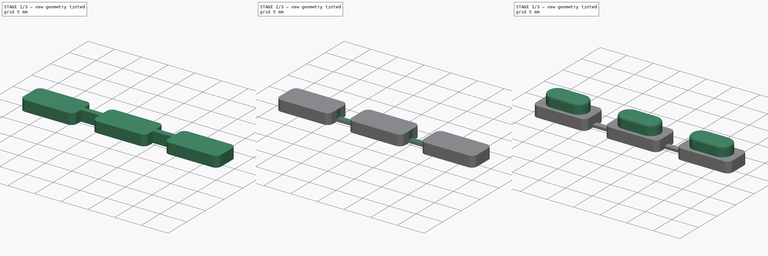
[diagram: build sequence overview — one tinted view per stage of 3, left to right]
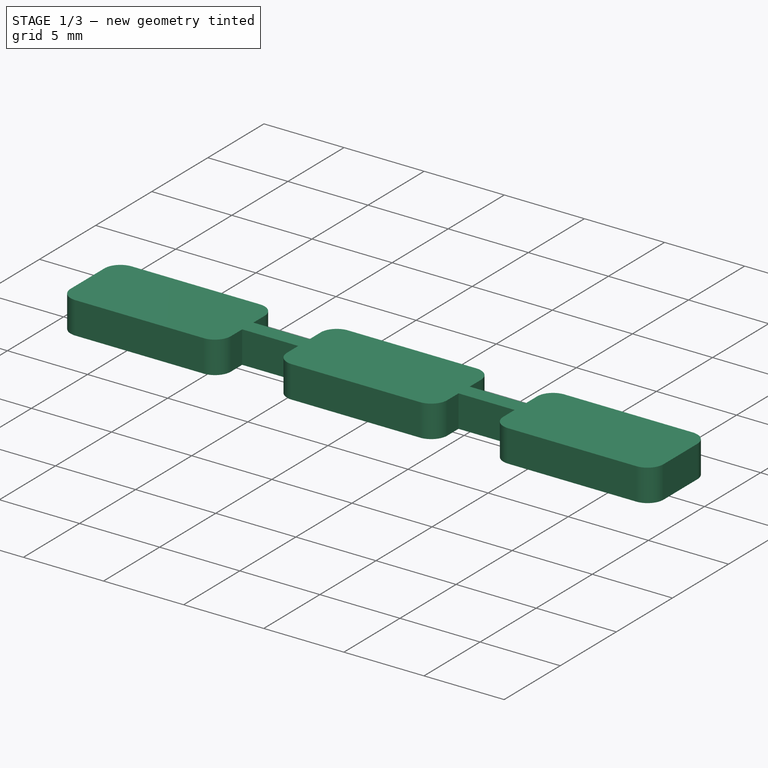
[diagram: stage 1 of 3 — iso view after this stage's code; geometry added in this stage tinted green]
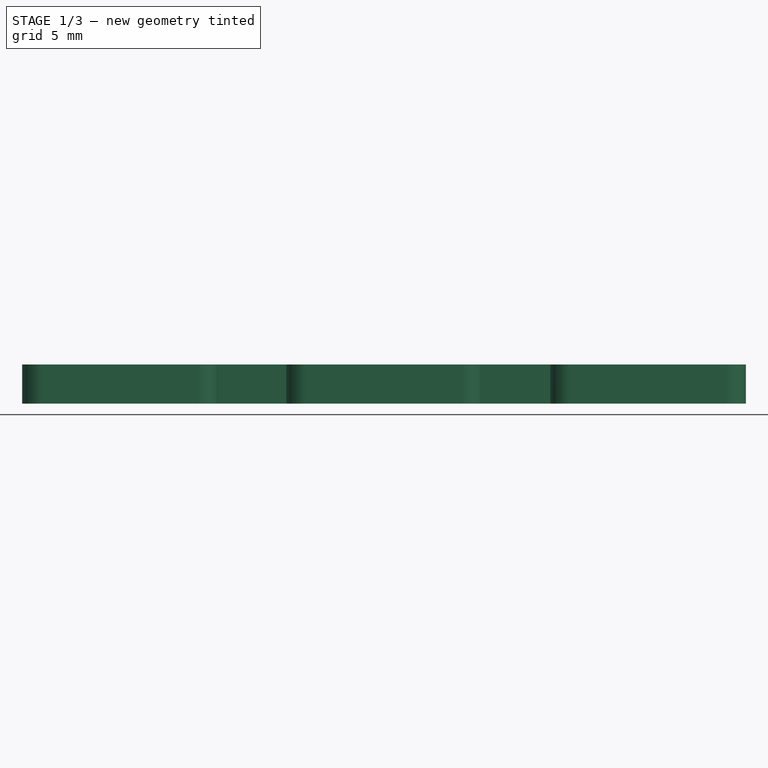
[diagram: stage 1 of 3 — front view after this stage's code; geometry added in this stage tinted green]
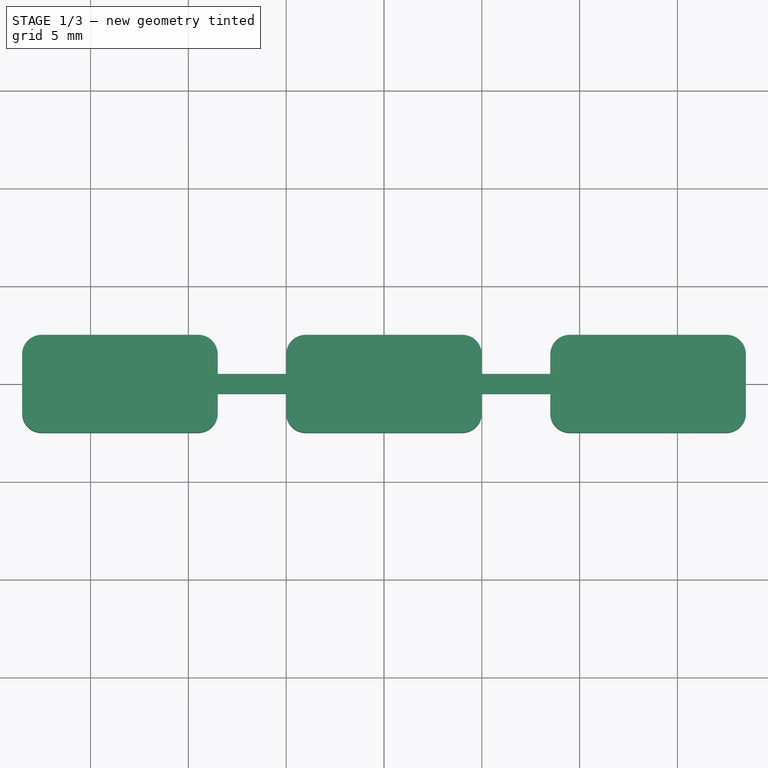
[diagram: stage 1 of 3 — top view after this stage's code; geometry added in this stage tinted green]
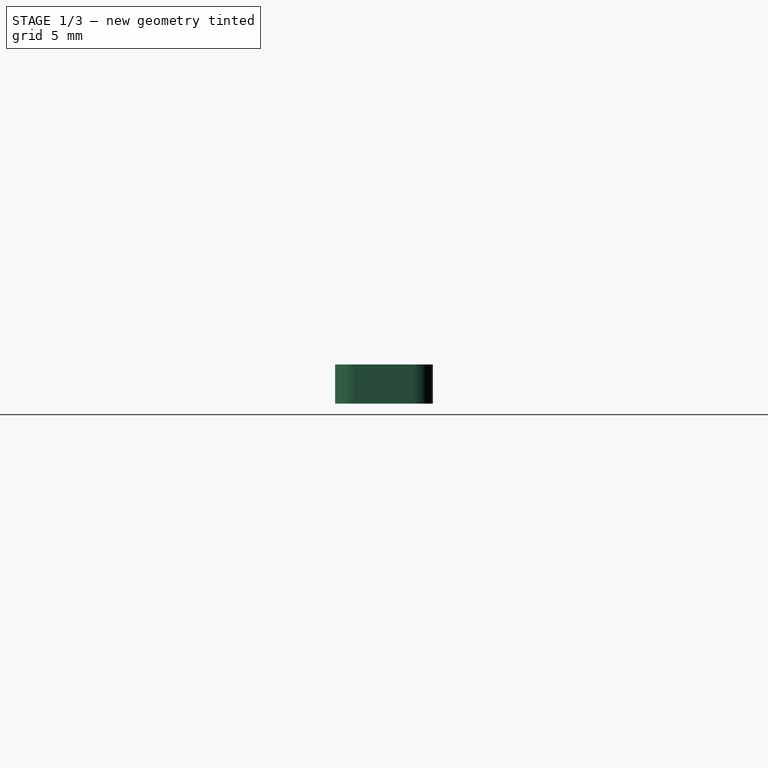
[diagram: stage 1 of 3 — right view after this stage's code; geometry added in this stage tinted green]
FCSTD DOCUMENT  (FreeCAD 0.16R6710 (Git))
Label: buttons
License: All rights reserved
LicenseURL: http://en.wikipedia.org/wiki/All_rights_reserved
objects: Sketcher::SketchObject×3, PartDesign::Pad×2, PartDesign::Fillet×2, PartDesign::Pocket×1
note: 11 computed .brp shape members not serialized (recipe doc carries the construction recipe); baked Part::Feature solids carry a one-line shape summary decoded from their .brp

FEATURE [Sketcher::SketchObject] Sketch
  sketch-geometry (25):
    g0: LineSegment StartX=-18.5 StartY=2.5 StartZ=0 EndX=-8.5 EndY=2.5 EndZ=0
    g1: LineSegment StartX=-8.5 StartY=-2.5 StartZ=0 EndX=-18.5 EndY=-2.5 EndZ=0
    g2: LineSegment StartX=-18.5 StartY=-2.5 StartZ=0 EndX=-18.5 EndY=2.5 EndZ=0
    g3: LineSegment StartX=-5 StartY=2.5 StartZ=0 EndX=5 EndY=2.5 EndZ=0
    g4: LineSegment StartX=5 StartY=-2.5 StartZ=0 EndX=-5 EndY=-2.5 EndZ=0
    g5: LineSegment StartX=8.5 StartY=2.5 StartZ=0 EndX=18.5 EndY=2.5 EndZ=0
    g6: LineSegment StartX=18.5 StartY=2.5 StartZ=0 EndX=18.5 EndY=-2.5 EndZ=0
    g7: LineSegment StartX=18.5 StartY=-2.5 StartZ=0 EndX=8.5 EndY=-2.5 EndZ=0
    g8: LineSegment [constr] StartX=-8.5 StartY=2.5 StartZ=0 EndX=-5 EndY=2.5 EndZ=0
    g9: LineSegment [constr] StartX=5 StartY=2.5 StartZ=0 EndX=8.5 EndY=2.5 EndZ=0
    g10: LineSegment [constr] StartX=-8.5 StartY=-2.5 StartZ=0 EndX=-5 EndY=-2.5 EndZ=0
    g11: LineSegment [constr] StartX=5 StartY=-2.5 StartZ=0 EndX=8.5 EndY=-2.5 EndZ=0
    g12: LineSegment StartX=-8.5 StartY=2.5 StartZ=0 EndX=-8.5 EndY=0.5 EndZ=0
    g13: LineSegment StartX=-8.5 StartY=0.5 StartZ=0 EndX=-5 EndY=0.5 EndZ=0
    g14: LineSegment StartX=-5 StartY=0.5 StartZ=0 EndX=-5 EndY=2.5 EndZ=0
    g15: LineSegment StartX=-8.5 StartY=-2.5 StartZ=0 EndX=-8.5 EndY=-0.5 EndZ=0
    g16: LineSegment StartX=-8.5 StartY=-0.5 StartZ=0 EndX=-5 EndY=-0.5 EndZ=0
    g17: LineSegment StartX=-5 StartY=-0.5 StartZ=0 EndX=-5 EndY=-2.5 EndZ=0
    g18: LineSegment StartX=5 StartY=-2.5 StartZ=0 EndX=5 EndY=-0.5 EndZ=0
    g19: LineSegment StartX=5 StartY=-0.5 StartZ=0 EndX=8.5 EndY=-0.5 EndZ=0
    g20: LineSegment StartX=8.5 StartY=-0.5 StartZ=0 EndX=8.5 EndY=-2.5 EndZ=0
    g21: LineSegment StartX=5 StartY=2.5 StartZ=0 EndX=5 EndY=0.5 EndZ=0
    g22: LineSegment StartX=5 StartY=0.5 StartZ=0 EndX=8.5 EndY=0.5 EndZ=0
    g23: LineSegment StartX=8.5 StartY=0.5 StartZ=0 EndX=8.5 EndY=2.5 EndZ=0
    g24: LineSegment [constr] StartX=-5 StartY=0.5 StartZ=0 EndX=5 EndY=0.5 EndZ=0
  constraints (69):
    c: Coincident(g1,g2)
    c: Coincident(g2,g0)
    c: Horizontal(g0)
    c: Horizontal(g1)
    c: Vertical(g2)
    c: DistanceX(g0,g0) = 10
    c: DistanceY(g2,g2) = 5
    c: Symmetric(g0,g1,g-1)
    c: Horizontal(g3)
    c: Horizontal(g4)
    c: Coincident(g5,g6)
    c: Coincident(g6,g7)
    c: Horizontal(g5)
    c: Horizontal(g7)
    c: Vertical(g6)
    c: Equal(g3,g5)
    c: Equal(g5,g0)
    c: Coincident(g8,g0)
    c: Coincident(g8,g3)
    c: Horizontal(g8)
    c: Coincident(g9,g3)
    c: Coincident(g9,g5)
    c: Horizontal(g9)
    c: Coincident(g10,g1)
    c: Coincident(g11,g7)
    c: Horizontal(g10)
    c: Coincident(g4,g10)
    c: Horizontal(g11)
    c: Equal(g9,g8)
    c: DistanceX(g8,g8) = 3.5
    c: Coincident(g0,g12)
    c: Coincident(g12,g13)
    c: Horizontal(g13)
    c: Coincident(g13,g14)
    c: Coincident(g14,g3)
    c: Vertical(g14)
    c: Coincident(g1,g15)
    c: Vertical(g15)
    c: Coincident(g15,g16)
    c: Horizontal(g16)
    c: Coincident(g16,g17)
    c: Coincident(g17,g4)
    c: Vertical(g17)
    c: Vertical(g18)
    c: Coincident(g18,g19)
    c: Horizontal(g19)
    c: Coincident(g19,g20)
    c: Coincident(g3,g21)
    c: Vertical(g21)
    c: Coincident(g21,g22)
    c: Horizontal(g22)
    c: Coincident(g22,g23)
    c: Coincident(g23,g5)
    c: Vertical(g23)
    c: Vertical(g20)
    c: Vertical(g12)
    c: Symmetric(g3,g4,g-1)
    c: Symmetric(g3,g4,g-1)
    c: Coincident(g18,g11)
    c: Coincident(g11,g4)
    c: Coincident(g20,g7)
    c: Symmetric(g7,g5,g-1)
    c: Symmetric(g21,g18,g-1)
    c: Symmetric(g16,g13,g-1)
    c: DistanceY(g16,g13) = 1
    c: Coincident(g24,g13)
    c: Coincident(g24,g21)
    c: Horizontal(g24)
    c: Symmetric(g3,g3,g-2)
FEATURE [PartDesign::Pad] Pad
  Length = 2
  Length2 = 100
  Sketch = -> Sketch
  Type = 0
FEATURE [PartDesign::Fillet] Fillet
  Base = -> Pad [Edge5,Edge17,Edge29,Edge2,Edge50,Edge38,Edge8,Edge1,Edge20,Edge47,Edge32,Edge35]
  Radius = 1
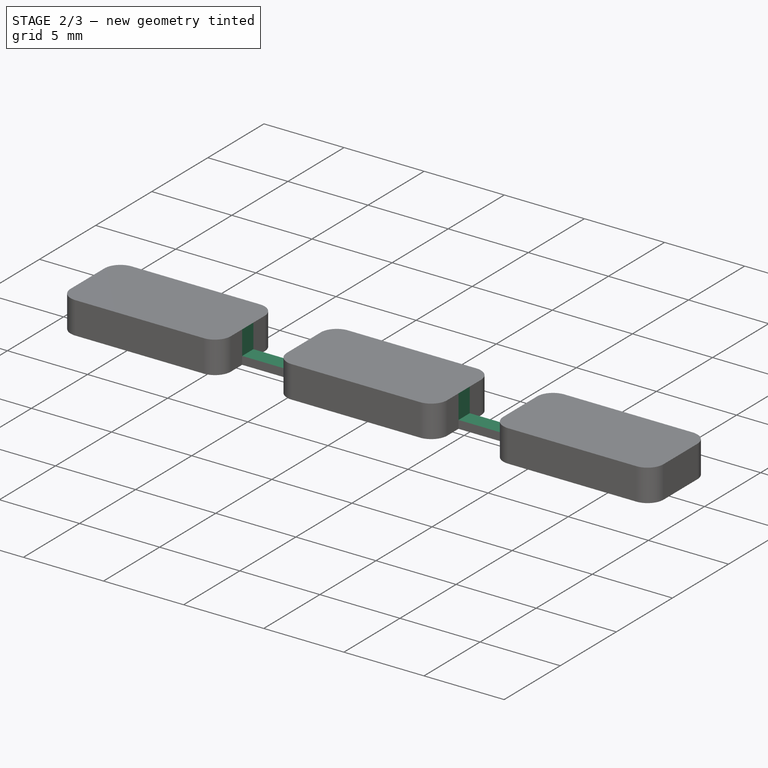
[diagram: stage 2 of 3 — iso view after this stage's code; geometry added in this stage tinted green]
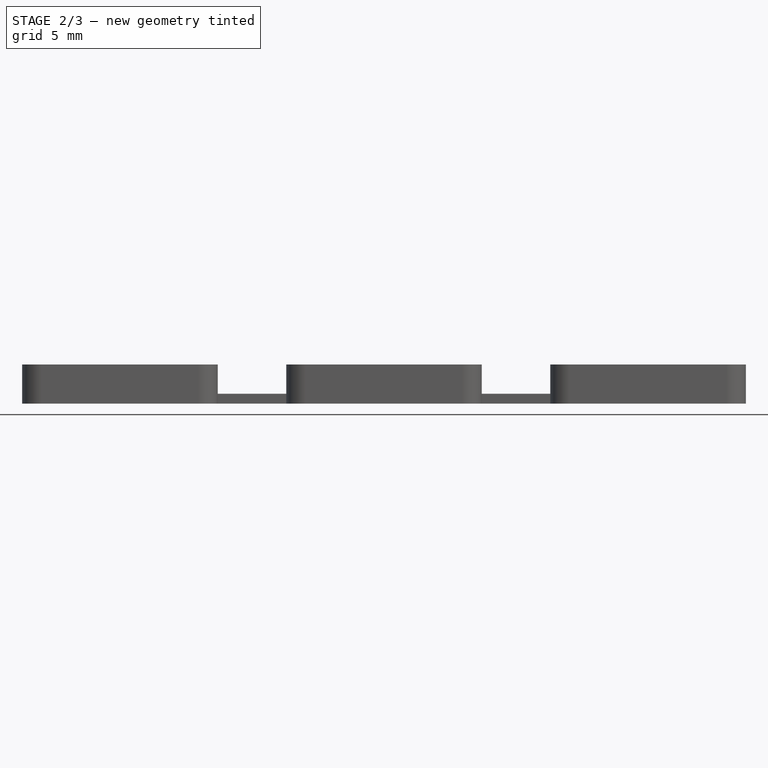
[diagram: stage 2 of 3 — front view after this stage's code; geometry added in this stage tinted green]
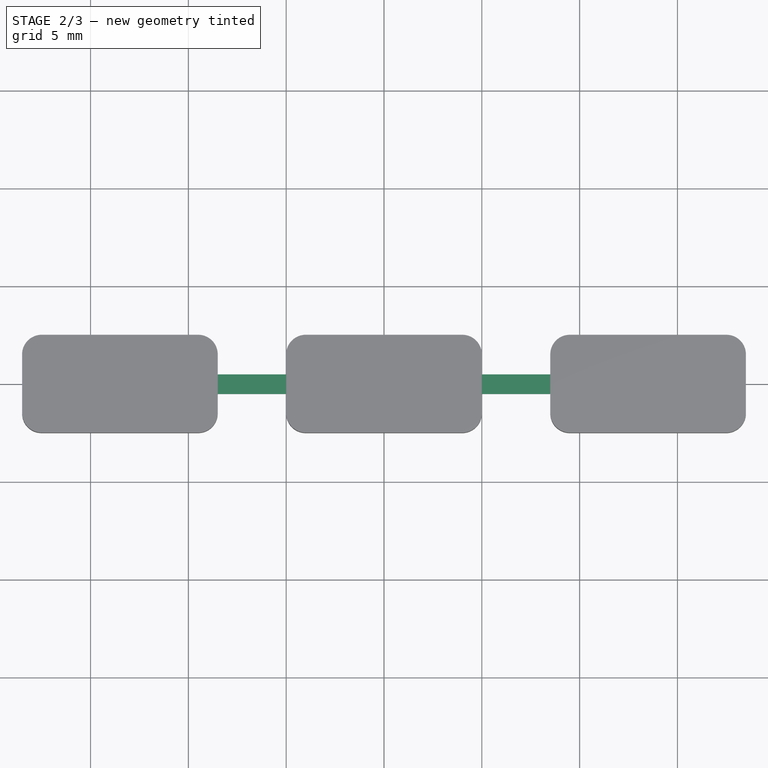
[diagram: stage 2 of 3 — top view after this stage's code; geometry added in this stage tinted green]
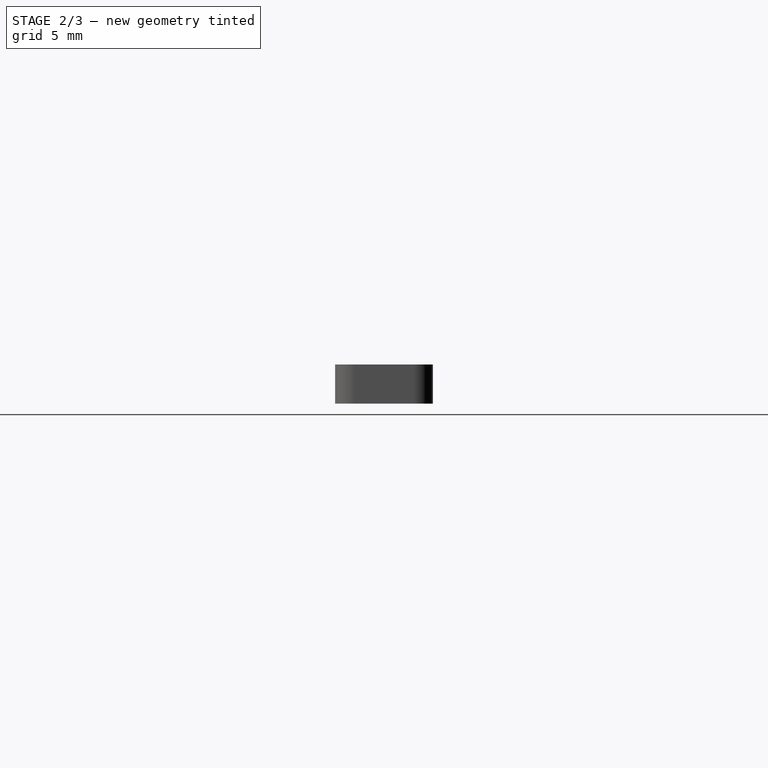
[diagram: stage 2 of 3 — right view after this stage's code; geometry added in this stage tinted green]
FEATURE [Sketcher::SketchObject] Sketch001
  Placement = pos=(0,0,2) rot=(0,0,1;0rad)
  Support = -> Fillet [Face5]
  sketch-geometry (10):
    g0: LineSegment StartX=-8.5 StartY=0.5 StartZ=0 EndX=-5 EndY=0.5 EndZ=0
    g1: LineSegment StartX=-5 StartY=0.5 StartZ=0 EndX=-5 EndY=-0.5 EndZ=0
    g2: LineSegment StartX=-5 StartY=-0.5 StartZ=0 EndX=-8.5 EndY=-0.5 EndZ=0
    g3: LineSegment StartX=-8.5 StartY=-0.5 StartZ=0 EndX=-8.5 EndY=0.5 EndZ=0
    g4: LineSegment StartX=5 StartY=0.5 StartZ=0 EndX=8.5 EndY=0.5 EndZ=0
    g5: LineSegment StartX=8.5 StartY=0.5 StartZ=0 EndX=8.5 EndY=-0.5 EndZ=0
    g6: LineSegment StartX=8.5 StartY=-0.5 StartZ=0 EndX=5 EndY=-0.5 EndZ=0
    g7: LineSegment StartX=5 StartY=-0.5 StartZ=0 EndX=5 EndY=0.5 EndZ=0
    g8: LineSegment [constr] StartX=-5 StartY=0.5 StartZ=0 EndX=5 EndY=0.5 EndZ=0
    g9: LineSegment [constr] StartX=-5 StartY=-0.5 StartZ=0 EndX=5 EndY=-0.5 EndZ=0
  constraints (28):
    c: Coincident(g0,g1)
    c: Coincident(g1,g2)
    c: Coincident(g2,g3)
    c: Coincident(g3,g0)
    c: Horizontal(g0)
    c: Horizontal(g2)
    c: Vertical(g1)
    c: Vertical(g3)
    c: Coincident(g4,g5)
    c: Coincident(g5,g6)
    c: Coincident(g6,g7)
    c: Coincident(g7,g4)
    c: Horizontal(g4)
    c: Horizontal(g6)
    c: Vertical(g5)
    c: Vertical(g7)
    c: Symmetric(g0,g4,g-2)
    c: Symmetric(g0,g1,g-1)
    c: Coincident(g8,g4)
    c: Horizontal(g8)
    c: Coincident(g9,g1)
    c: Coincident(g9,g6)
    c: Horizontal(g9)
    c: Coincident(g8,g0)
    c: DistanceY(g2,g0) = 1
    c: Equal(g4,g0)
    c: DistanceX(g0,g0) = 3.5
    c: DistanceX(g0,g-1) = 5
FEATURE [PartDesign::Pocket] Pocket
  Length = 1.5
  Sketch = -> Sketch001
  Type = 0
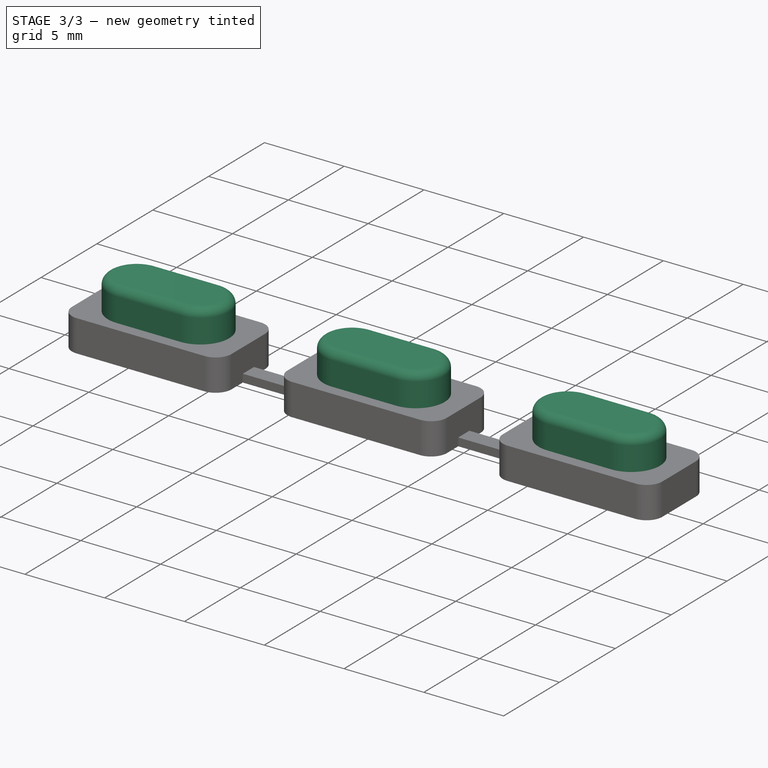
[diagram: stage 3 of 3 — iso view after this stage's code; geometry added in this stage tinted green]
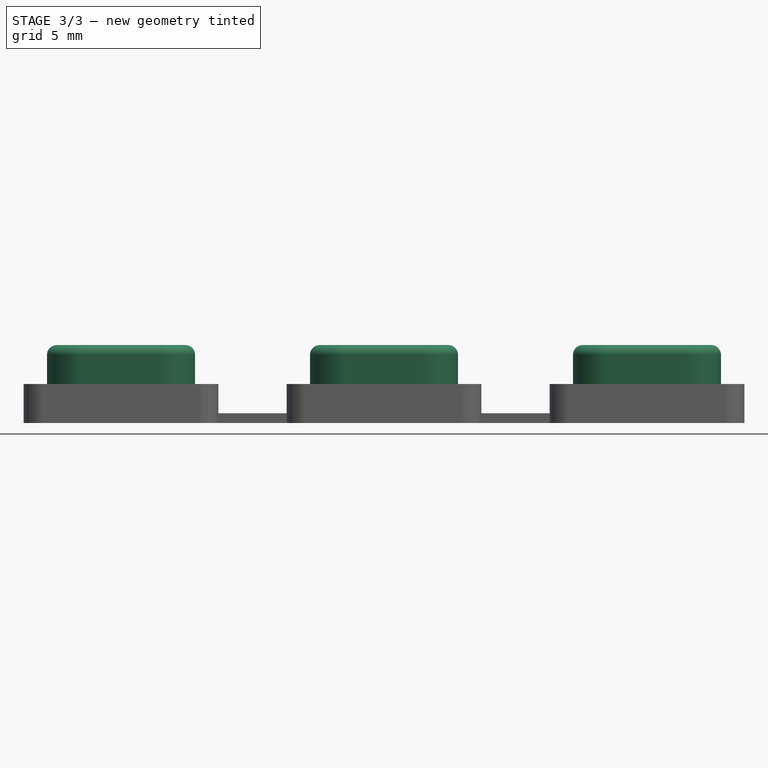
[diagram: stage 3 of 3 — front view after this stage's code; geometry added in this stage tinted green]
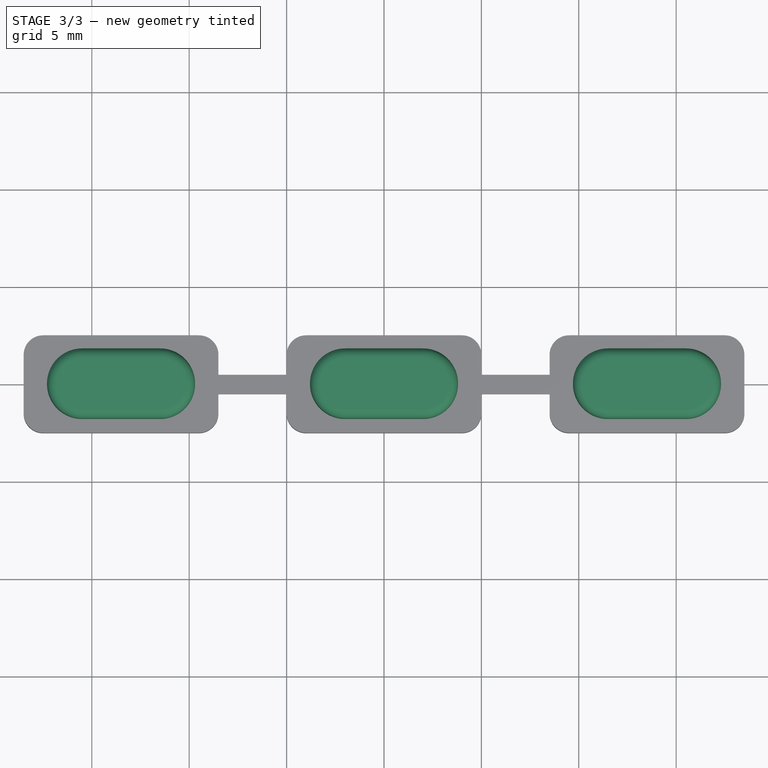
[diagram: stage 3 of 3 — top view after this stage's code; geometry added in this stage tinted green]
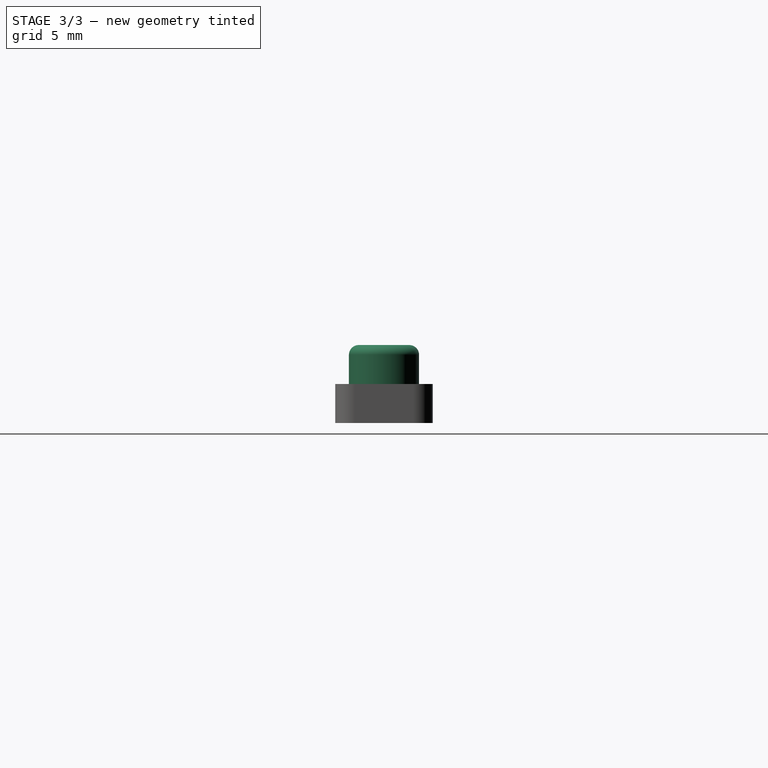
[diagram: stage 3 of 3 — right view after this stage's code; geometry added in this stage tinted green]
FEATURE [Sketcher::SketchObject] Sketch002
  Placement = pos=(0,0,2) rot=(0,0,1;0rad)
  Support = -> Pocket [Face5]
  sketch-geometry (20):
    g0: ArcOfCircle CenterX=-15.5 CenterY=0 CenterZ=0 NormalX=0 NormalY=0 NormalZ=1 Radius=1.8 StartAngle=1.5708 EndAngle=4.71239
    g1: ArcOfCircle CenterX=-11.5 CenterY=0 CenterZ=0 NormalX=0 NormalY=0 NormalZ=1 Radius=1.8 StartAngle=4.71239 EndAngle=7.85398
    g2: ArcOfCircle CenterX=-2 CenterY=0 CenterZ=0 NormalX=0 NormalY=0 NormalZ=1 Radius=1.8 StartAngle=1.5708 EndAngle=4.71239
    g3: ArcOfCircle CenterX=2 CenterY=0 CenterZ=0 NormalX=0 NormalY=0 NormalZ=1 Radius=1.8 StartAngle=4.71239 EndAngle=7.85398
    g4: ArcOfCircle CenterX=11.5 CenterY=0 CenterZ=0 NormalX=0 NormalY=0 NormalZ=1 Radius=1.8 StartAngle=1.5708 EndAngle=4.71239
    g5: ArcOfCircle CenterX=15.5 CenterY=0 CenterZ=0 NormalX=0 NormalY=0 NormalZ=1 Radius=1.8 StartAngle=4.71239 EndAngle=7.85398
    g6: LineSegment [constr] StartX=-15.5 StartY=1.8 StartZ=0 EndX=-15.5 EndY=-1.8 EndZ=0
    g7: LineSegment [constr] StartX=-11.5 StartY=1.8 StartZ=0 EndX=-11.5 EndY=-1.8 EndZ=0
    g8: LineSegment [constr] StartX=-2 StartY=1.8 StartZ=0 EndX=-2 EndY=-1.8 EndZ=0
    g9: LineSegment [constr] StartX=2 StartY=1.8 StartZ=0 EndX=2 EndY=-1.8 EndZ=0
    g10: LineSegment [constr] StartX=11.5 StartY=1.8 StartZ=0 EndX=11.5 EndY=-1.8 EndZ=0
    g11: LineSegment [constr] StartX=15.5 StartY=1.8 StartZ=0 EndX=15.5 EndY=-1.8 EndZ=0
    g12: LineSegment StartX=-2 StartY=1.8 StartZ=0 EndX=2 EndY=1.8 EndZ=0
    g13: LineSegment StartX=11.5 StartY=1.8 StartZ=0 EndX=15.5 EndY=1.8 EndZ=0
    g14: LineSegment StartX=15.5 StartY=-1.8 StartZ=0 EndX=11.5 EndY=-1.8 EndZ=0
    g15: LineSegment StartX=-2 StartY=-1.8 StartZ=0 EndX=2 EndY=-1.8 EndZ=0
    g16: LineSegment StartX=-15.5 StartY=-1.8 StartZ=0 EndX=-11.5 EndY=-1.8 EndZ=0
    g17: LineSegment StartX=-15.5 StartY=1.8 StartZ=0 EndX=-11.5 EndY=1.8 EndZ=0
    g18: LineSegment [constr] StartX=-11.5 StartY=0 StartZ=0 EndX=-2 EndY=0 EndZ=0
    g19: LineSegment [constr] StartX=2 StartY=0 StartZ=0 EndX=11.5 EndY=0 EndZ=0
  constraints (58):
    c: PointOnObject(g0,g-1)
    c: PointOnObject(g1,g-1)
    c: PointOnObject(g2,g-1)
    c: PointOnObject(g3,g-1)
    c: PointOnObject(g5,g-1)
    c: Coincident(g6,g0)
    c: Coincident(g6,g0)
    c: Vertical(g6)
    c: Coincident(g7,g1)
    c: Coincident(g7,g1)
    c: Vertical(g7)
    c: Coincident(g8,g2)
    c: Coincident(g8,g2)
    c: Vertical(g8)
    c: Coincident(g9,g3)
    c: Coincident(g9,g3)
    c: Vertical(g9)
    c: Coincident(g10,g4)
    c: Coincident(g10,g4)
    c: Vertical(g10)
    c: Coincident(g11,g5)
    c: Coincident(g11,g5)
    c: Vertical(g11)
    c: PointOnObject(g0,g6)
    c: PointOnObject(g2,g8)
    c: PointOnObject(g1,g7)
    c: PointOnObject(g3,g9)
    c: PointOnObject(g4,g10)
    c: PointOnObject(g5,g11)
    c: Equal(g0,g1)
    c: Equal(g1,g2)
    c: Equal(g3,g4)
    c: Equal(g4,g5)
    c: Radius(g5) = 1.8
    c: Coincident(g12,g2)
    c: Coincident(g12,g3)
    c: Coincident(g13,g4)
    c: Coincident(g13,g5)
    c: Horizontal(g13)
    c: Coincident(g14,g5)
    c: Coincident(g14,g4)
    c: Coincident(g15,g2)
    c: Horizontal(g15)
    c: Coincident(g16,g0)
    c: Coincident(g16,g1)
    c: Coincident(g17,g0)
    c: Coincident(g17,g1)
    c: Coincident(g15,g3)
    c: Equal(g17,g12)
    c: Equal(g12,g13)
    c: Symmetric(g2,g3,g-2)
    c: DistanceX(g2,g3) = 4
    c: Coincident(g18,g1)
    c: Coincident(g18,g2)
    c: Coincident(g19,g3)
    c: Coincident(g19,g4)
    c: Equal(g18,g19)
    c: DistanceX(g3,g4) = 9.5
FEATURE [PartDesign::Pad] Pad001
  Length = 2
  Length2 = 100
  Sketch = -> Sketch002
  Type = 0
FEATURE [PartDesign::Fillet] Fillet001
  Base = -> Pad001 [Edge112,Edge114,Edge116,Edge118,Edge140,Edge134,Edge136,Edge139,Edge142,Edge145,Edge146,Edge148]
  Radius = 0.5
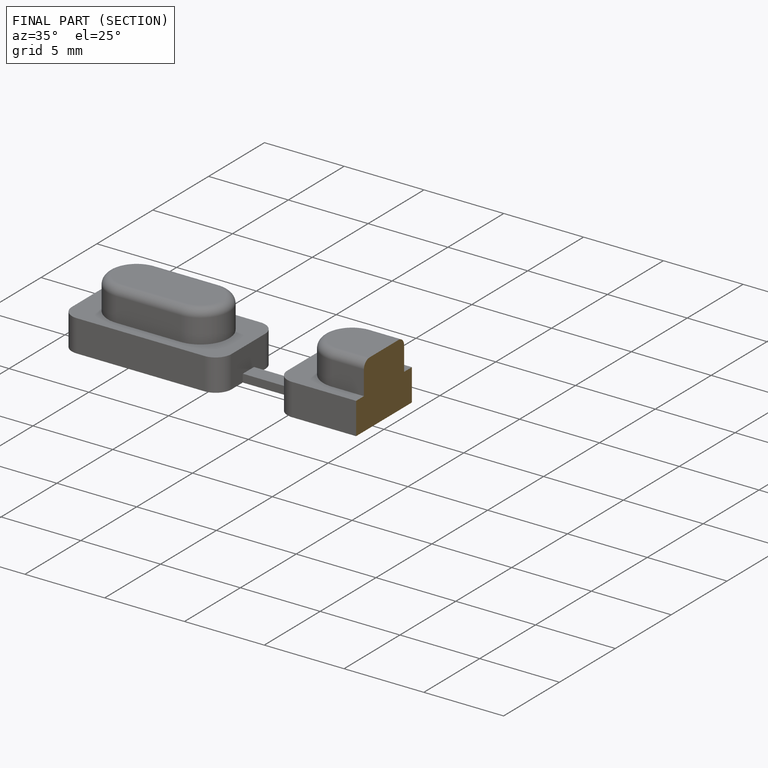
[diagram: finished part — half-section view (interior)]
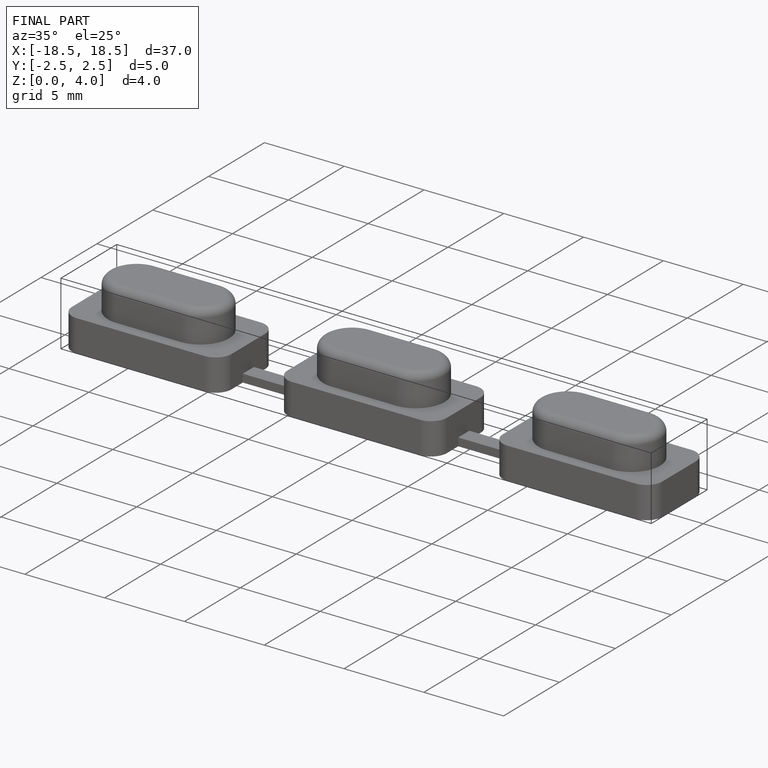
[diagram: finished part — iso view with bounding-box wireframe]
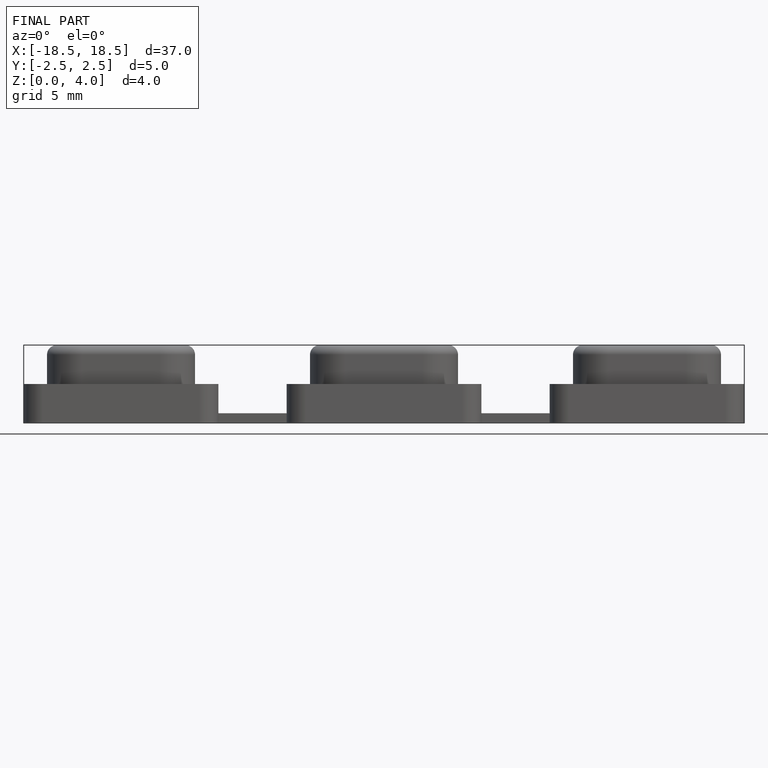
[diagram: finished part — front view with bounding-box wireframe]
